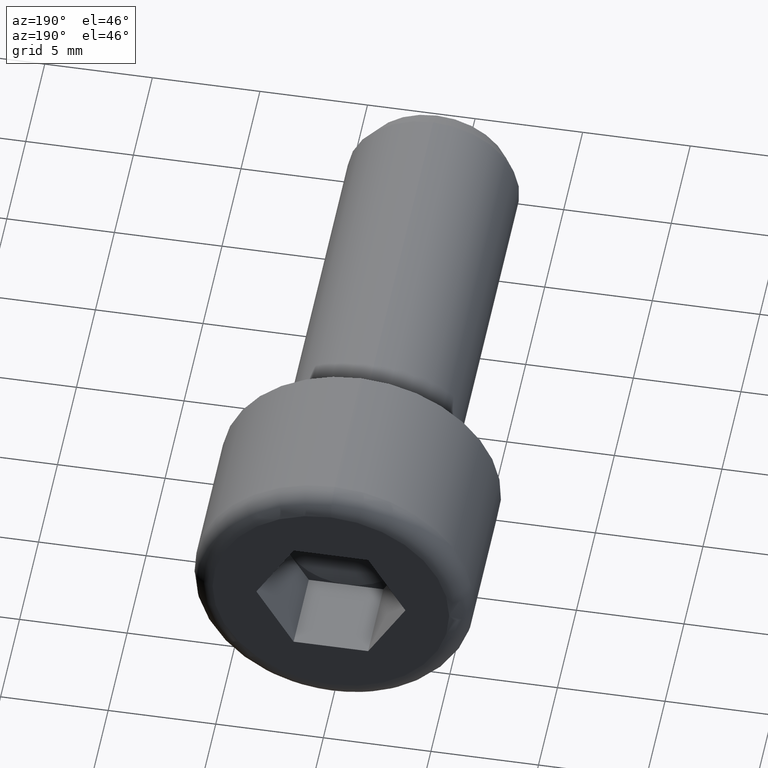
[diagram: clean part render]
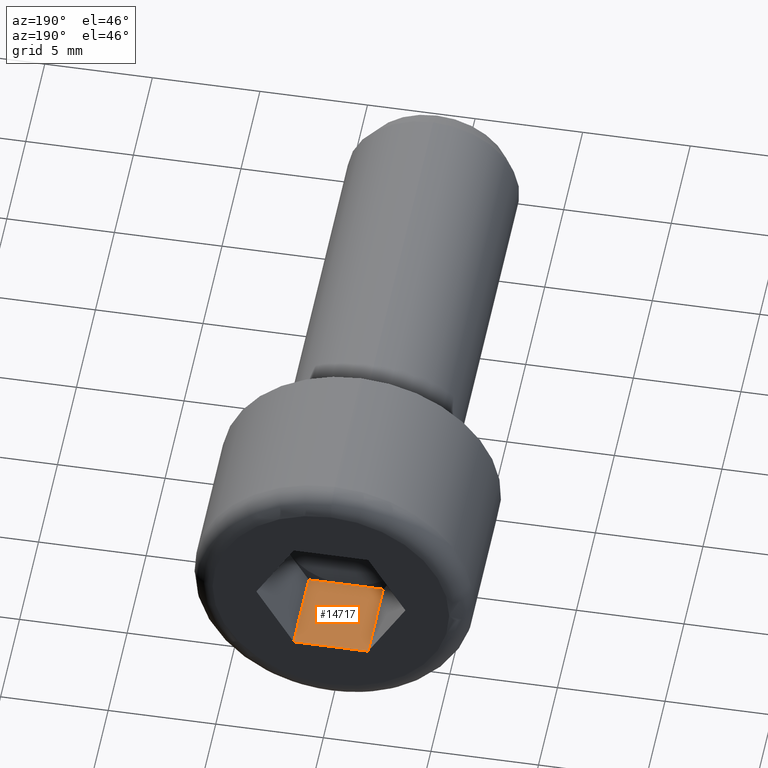
[diagram: same view with one face highlighted and labeled with its STEP entity id]
A machine part, auxiliary view. The second image highlights one B-rep face of the part: STEP entity #14717.
In plain terms, the highlighted planar face has unit normal (-0, 0, -1).
Its self-contained STEP definition (entity closure, byte-faithful):
#31 = VECTOR ( 'NONE', #7345, 1000.000000000000000 ) ;
#244 = ORIENTED_EDGE ( 'NONE', *, *, #4224, .T. ) ;
#822 = DIRECTION ( 'NONE',  ( -0.0000000000000000000, 1.000000000000000000, -0.0000000000000000000 ) ) ;
#1301 = CARTESIAN_POINT ( 'NONE',  ( -1.732050807568877400, 8.000000000000000000, -2.999999999999999600 ) ) ;
#1788 = LINE ( 'NONE', #14750, #31 ) ;
#1981 = VECTOR ( 'NONE', #8428, 1000.000000000000000 ) ;
#2007 = CARTESIAN_POINT ( 'NONE',  ( 1.732050807568876300, 4.000000000000000000, -3.000000000000000000 ) ) ;
#2791 = DIRECTION ( 'NONE',  ( -1.000000000000000000, 0.0000000000000000000, 1.251928832280966200E-016 ) ) ;
#3370 = ORIENTED_EDGE ( 'NONE', *, *, #8517, .F. ) ;
#3428 = CARTESIAN_POINT ( 'NONE',  ( 1.732050807568876300, 4.000000000000000000, -3.000000000000000000 ) ) ;
#3794 = VECTOR ( 'NONE', #2791, 1000.000000000000000 ) ;
#3849 = LINE ( 'NONE', #3428, #10034 ) ;
#4101 = VERTEX_POINT ( 'NONE', #16054 ) ;
#4224 = EDGE_CURVE ( 'NONE', #9558, #8008, #7079, .T. ) ;
#4436 = VERTEX_POINT ( 'NONE', #7763 ) ;
#4453 = ORIENTED_EDGE ( 'NONE', *, *, #14330, .T. ) ;
#5217 = FACE_OUTER_BOUND ( 'NONE', #8741, .T. ) ;
#5398 = CARTESIAN_POINT ( 'NONE',  ( 1.732050807568876300, 8.000000000000000000, -3.000000000000000000 ) ) ;
#7079 = LINE ( 'NONE', #15295, #3794 ) ;
#7173 = CARTESIAN_POINT ( 'NONE',  ( 1.732050807568876300, 4.000000000000000000, -3.000000000000000000 ) ) ;
#7345 = DIRECTION ( 'NONE',  ( -1.000000000000000000, 0.0000000000000000000, 1.251928832280966200E-016 ) ) ;
#7763 = CARTESIAN_POINT ( 'NONE',  ( -5.333242336302395600E-016, 3.999999999999998200, -3.000000000000000000 ) ) ;
#7984 = DIRECTION ( 'NONE',  ( -1.000000000000000000, 0.0000000000000000000, 1.251928832280966200E-016 ) ) ;
#8008 = VERTEX_POINT ( 'NONE', #1301 ) ;
#8265 = DIRECTION ( 'NONE',  ( -1.251928832280966200E-016, 0.0000000000000000000, -1.000000000000000000 ) ) ;
#8312 = EDGE_CURVE ( 'NONE', #4101, #8008, #10329, .T. ) ;
#8348 = EDGE_CURVE ( 'NONE', #4436, #4101, #1788, .T. ) ;
#8428 = DIRECTION ( 'NONE',  ( -0.0000000000000000000, 1.000000000000000000, -0.0000000000000000000 ) ) ;
#8517 = EDGE_CURVE ( 'NONE', #13026, #4436, #9161, .T. ) ;
#8741 = EDGE_LOOP ( 'NONE', ( #244, #14693, #13403, #3370, #4453 ) ) ;
#9161 = LINE ( 'NONE', #2007, #11092 ) ;
#9558 = VERTEX_POINT ( 'NONE', #5398 ) ;
#10034 = VECTOR ( 'NONE', #822, 1000.000000000000000 ) ;
#10329 = LINE ( 'NONE', #11132, #1981 ) ;
#10596 = CARTESIAN_POINT ( 'NONE',  ( 1.732050807568876300, 4.000000000000000000, -3.000000000000000000 ) ) ;
#11092 = VECTOR ( 'NONE', #7984, 1000.000000000000000 ) ;
#11132 = CARTESIAN_POINT ( 'NONE',  ( -1.732050807568877400, 4.000000000000000000, -2.999999999999999600 ) ) ;
#13026 = VERTEX_POINT ( 'NONE', #7173 ) ;
#13119 = DIRECTION ( 'NONE',  ( -1.000000000000000000, 0.0000000000000000000, 1.251928832280966200E-016 ) ) ;
#13403 = ORIENTED_EDGE ( 'NONE', *, *, #8348, .F. ) ;
#14143 = AXIS2_PLACEMENT_3D ( 'NONE', #10596, #8265, #13119 ) ;
#14330 = EDGE_CURVE ( 'NONE', #13026, #9558, #3849, .T. ) ;
#14693 = ORIENTED_EDGE ( 'NONE', *, *, #8312, .F. ) ;
#14717 = ADVANCED_FACE ( 'NONE', ( #5217 ), #15561, .F. ) ;
#14750 = CARTESIAN_POINT ( 'NONE',  ( 1.732050807568876300, 4.000000000000000000, -3.000000000000000000 ) ) ;
#15295 = CARTESIAN_POINT ( 'NONE',  ( 1.732050807568876300, 8.000000000000000000, -3.000000000000000000 ) ) ;
#15561 = PLANE ( 'NONE',  #14143 ) ;
#16054 = CARTESIAN_POINT ( 'NONE',  ( -1.732050807568877400, 4.000000000000000000, -2.999999999999999600 ) ) ;